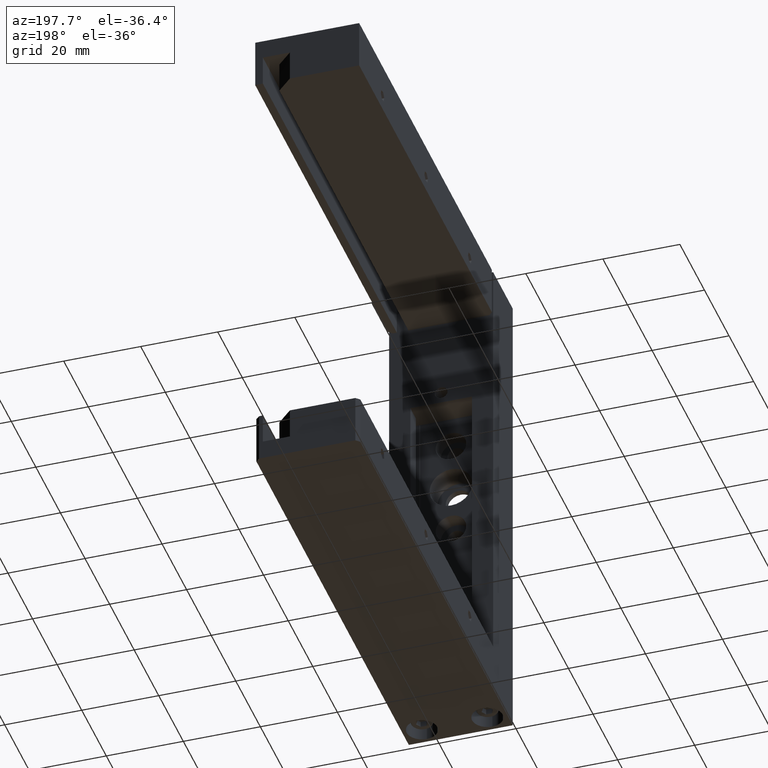
[diagram: clean part render]
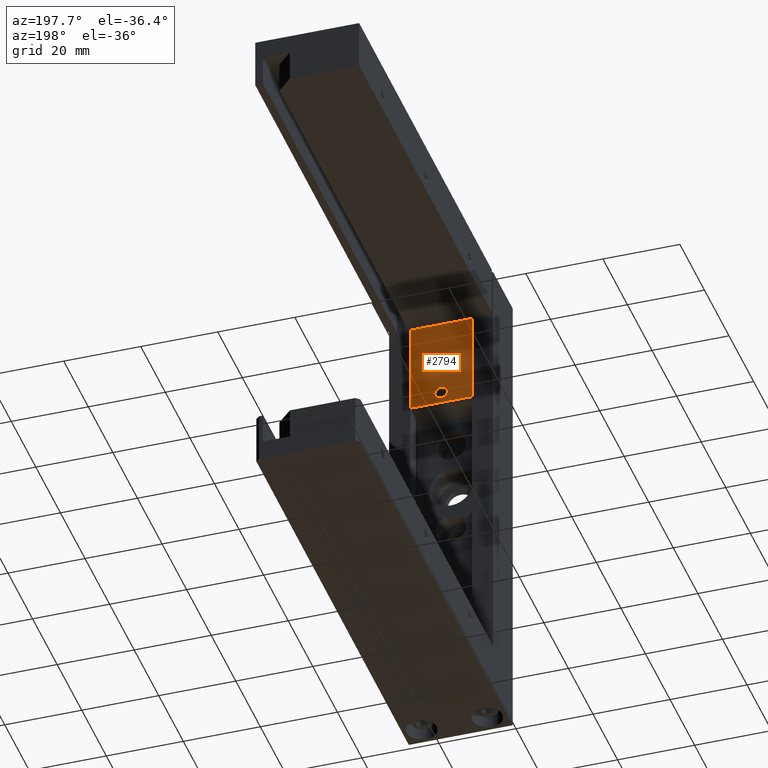
[diagram: same view with one face highlighted and labeled with its STEP entity id]
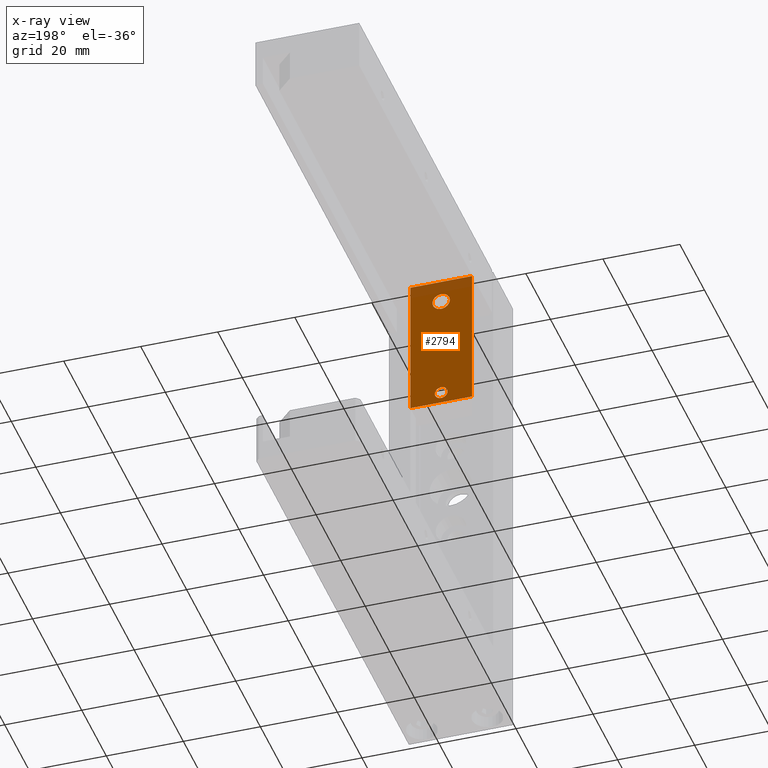
[diagram: x-ray of the same camera — body ghosted, the highlighted face saturated]
A machine part, auxiliary view. The second image highlights one B-rep face of the part: STEP entity #2794.
The next image is the same camera in x-ray: the body ghosted, the highlighted face saturated — about 9% of this face is hidden behind the body in this view.
In plain terms, the highlighted planar face has unit normal (-0, -1, -0).
Its self-contained STEP definition (entity closure, byte-faithful):
#78 = LINE ( 'NONE', #1598, #4334 ) ;
#90 = VERTEX_POINT ( 'NONE', #2147 ) ;
#119 = AXIS2_PLACEMENT_3D ( 'NONE', #8016, #5389, #2233 ) ;
#259 = CARTESIAN_POINT ( 'NONE',  ( -5.068119891007929900, 14.11989100817435300, 23.49999999999963100 ) ) ;
#283 = DIRECTION ( 'NONE',  ( 1.000000000000000000, 0.0000000000000000000, 0.0000000000000000000 ) ) ;
#363 = DIRECTION ( 'NONE',  ( -1.665334536937504300E-016, -3.139654263024842800E-016, 1.000000000000000000 ) ) ;
#444 = EDGE_LOOP ( 'NONE', ( #5446, #886, #6118, #7933 ) ) ;
#451 = CIRCLE ( 'NONE', #7254, 1.650000000000016100 ) ;
#873 = AXIS2_PLACEMENT_3D ( 'NONE', #4346, #3734, #7552 ) ;
#886 = ORIENTED_EDGE ( 'NONE', *, *, #6339, .F. ) ;
#1103 = EDGE_LOOP ( 'NONE', ( #3139, #7158 ) ) ;
#1230 = DIRECTION ( 'NONE',  ( -1.665334536937504300E-016, -3.139654263024842800E-016, 1.000000000000000000 ) ) ;
#1277 = CARTESIAN_POINT ( 'NONE',  ( 2.931880108992173600, 14.11989100817435300, 20.49999999999964100 ) ) ;
#1458 = CARTESIAN_POINT ( 'NONE',  ( -13.06811989100802400, 14.11989100817433900, 57.49999999999991500 ) ) ;
#1598 = CARTESIAN_POINT ( 'NONE',  ( 2.931880108992140200, 14.11989100817433500, 57.49999999999996400 ) ) ;
#1689 = VERTEX_POINT ( 'NONE', #8250 ) ;
#1705 = DIRECTION ( 'NONE',  ( 1.000000000000000000, -1.389264648971652200E-016, 1.665334536937966800E-016 ) ) ;
#1742 = VERTEX_POINT ( 'NONE', #1277 ) ;
#1888 = FACE_OUTER_BOUND ( 'NONE', #444, .T. ) ;
#1939 = ORIENTED_EDGE ( 'NONE', *, *, #8248, .T. ) ;
#2012 = EDGE_CURVE ( 'NONE', #90, #1689, #451, .T. ) ;
#2040 = DIRECTION ( 'NONE',  ( -1.389264648970342400E-016, -1.000000000000000000, -3.139654263025172200E-016 ) ) ;
#2063 = LINE ( 'NONE', #3152, #4654 ) ;
#2084 = FACE_BOUND ( 'NONE', #1103, .T. ) ;
#2147 = CARTESIAN_POINT ( 'NONE',  ( -6.718119891007928500, 14.11989100817435300, 23.49999999999963100 ) ) ;
#2233 = DIRECTION ( 'NONE',  ( -1.000000000000000000, 0.0000000000000000000, 0.0000000000000000000 ) ) ;
#2495 = VERTEX_POINT ( 'NONE', #2812 ) ;
#2613 = CIRCLE ( 'NONE', #119, 2.250000000000022600 ) ;
#2670 = DIRECTION ( 'NONE',  ( -1.000000000000000000, 0.0000000000000000000, 0.0000000000000000000 ) ) ;
#2676 = FACE_BOUND ( 'NONE', #5791, .T. ) ;
#2794 = ADVANCED_FACE ( 'NONE', ( #2676, #2084, #1888 ), #8215, .F. ) ;
#2812 = CARTESIAN_POINT ( 'NONE',  ( -7.318119891007939700, 14.11989100817434000, 51.49999999999996400 ) ) ;
#2900 = VERTEX_POINT ( 'NONE', #3218 ) ;
#2970 = VERTEX_POINT ( 'NONE', #5931 ) ;
#3133 = LINE ( 'NONE', #3841, #4657 ) ;
#3139 = ORIENTED_EDGE ( 'NONE', *, *, #4047, .F. ) ;
#3152 = CARTESIAN_POINT ( 'NONE',  ( 2.931880108992173600, 14.11989100817435300, 20.49999999999964100 ) ) ;
#3218 = CARTESIAN_POINT ( 'NONE',  ( -2.818119891007917500, 14.11989100817434000, 51.50000000000011400 ) ) ;
#3331 = CARTESIAN_POINT ( 'NONE',  ( -5.068119891007916600, 14.11989100817434000, 51.49999999999996400 ) ) ;
#3398 = CARTESIAN_POINT ( 'NONE',  ( -5.068119891007929900, 14.11989100817435300, 23.49999999999963100 ) ) ;
#3704 = AXIS2_PLACEMENT_3D ( 'NONE', #3331, #2040, #2670 ) ;
#3734 = DIRECTION ( 'NONE',  ( -1.389264648971651700E-016, -1.000000000000000000, -3.139654263025172200E-016 ) ) ;
#3841 = CARTESIAN_POINT ( 'NONE',  ( 2.931880108992173600, 14.11989100817435300, 20.49999999999964100 ) ) ;
#4047 = EDGE_CURVE ( 'NONE', #1689, #90, #5601, .T. ) ;
#4065 = CARTESIAN_POINT ( 'NONE',  ( 2.931880108992140200, 14.11989100817433500, 57.49999999999996400 ) ) ;
#4334 = VECTOR ( 'NONE', #1705, 1000.000000000000000 ) ;
#4346 = CARTESIAN_POINT ( 'NONE',  ( 2.931880108992173600, 14.11989100817435300, 20.49999999999964100 ) ) ;
#4549 = CARTESIAN_POINT ( 'NONE',  ( -13.06811989100801700, 14.11989100817435300, 20.49999999999964100 ) ) ;
#4654 = VECTOR ( 'NONE', #1230, 1000.000000000000000 ) ;
#4657 = VECTOR ( 'NONE', #5133, 1000.000000000000000 ) ;
#4769 = DIRECTION ( 'NONE',  ( 1.389264648970342400E-016, 1.000000000000000000, 3.139654263025172200E-016 ) ) ;
#4791 = EDGE_CURVE ( 'NONE', #2495, #2900, #5488, .T. ) ;
#5133 = DIRECTION ( 'NONE',  ( 1.000000000000000000, -1.389264648971652200E-016, 1.665334536937966800E-016 ) ) ;
#5150 = AXIS2_PLACEMENT_3D ( 'NONE', #3398, #6675, #6061 ) ;
#5339 = VECTOR ( 'NONE', #363, 1000.000000000000000 ) ;
#5389 = DIRECTION ( 'NONE',  ( -1.389264648970342400E-016, -1.000000000000000000, -3.139654263025172200E-016 ) ) ;
#5446 = ORIENTED_EDGE ( 'NONE', *, *, #5708, .T. ) ;
#5488 = CIRCLE ( 'NONE', #3704, 2.250000000000022600 ) ;
#5601 = CIRCLE ( 'NONE', #5150, 1.650000000000016100 ) ;
#5708 = EDGE_CURVE ( 'NONE', #6170, #8236, #78, .T. ) ;
#5791 = EDGE_LOOP ( 'NONE', ( #7858, #1939 ) ) ;
#5859 = LINE ( 'NONE', #4549, #5339 ) ;
#5931 = CARTESIAN_POINT ( 'NONE',  ( -13.06811989100801700, 14.11989100817435300, 20.49999999999964100 ) ) ;
#6061 = DIRECTION ( 'NONE',  ( 1.000000000000000000, 0.0000000000000000000, 0.0000000000000000000 ) ) ;
#6118 = ORIENTED_EDGE ( 'NONE', *, *, #7010, .F. ) ;
#6170 = VERTEX_POINT ( 'NONE', #1458 ) ;
#6339 = EDGE_CURVE ( 'NONE', #1742, #8236, #2063, .T. ) ;
#6675 = DIRECTION ( 'NONE',  ( 1.389264648970342400E-016, 1.000000000000000000, 3.139654263025172200E-016 ) ) ;
#7010 = EDGE_CURVE ( 'NONE', #2970, #1742, #3133, .T. ) ;
#7158 = ORIENTED_EDGE ( 'NONE', *, *, #2012, .F. ) ;
#7254 = AXIS2_PLACEMENT_3D ( 'NONE', #259, #4769, #283 ) ;
#7552 = DIRECTION ( 'NONE',  ( -1.000000000000000000, 1.389264648971652200E-016, -1.665334536937966800E-016 ) ) ;
#7858 = ORIENTED_EDGE ( 'NONE', *, *, #4791, .T. ) ;
#7933 = ORIENTED_EDGE ( 'NONE', *, *, #8199, .T. ) ;
#8016 = CARTESIAN_POINT ( 'NONE',  ( -5.068119891007916600, 14.11989100817434000, 51.49999999999996400 ) ) ;
#8199 = EDGE_CURVE ( 'NONE', #2970, #6170, #5859, .T. ) ;
#8215 = PLANE ( 'NONE',  #873 ) ;
#8236 = VERTEX_POINT ( 'NONE', #4065 ) ;
#8248 = EDGE_CURVE ( 'NONE', #2900, #2495, #2613, .T. ) ;
#8250 = CARTESIAN_POINT ( 'NONE',  ( -3.418119891007914000, 14.11989100817435300, 23.49999999999963100 ) ) ;